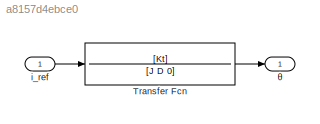
MODEL slx_a8157d4ebce0
KIND model
CONFIG AbsTol = auto
CONFIG EnableMultiTasking = off
CONFIG FixedStep = auto
CONFIG MaxStep = auto
CONFIG MinStep = auto
CONFIG RelTol = 1e-3
CONFIG SampleTimeConstraint = Unconstrained
CONFIG Solver = VariableStepAuto
CONFIG SolverName = VariableStepAuto
CONFIG StartTime = 0.0
CONFIG StopTime = 10.0
BLOCK [TransferFcn] Transfer Fcn
  Denominator = [J D 0]
  Numerator = [Kt]
BLOCK [Inport] i_ref
  IconDisplay = Port number
BLOCK [Outport] θ
  IconDisplay = Port number
LINE Transfer Fcn:1 -> θ:1
LINE i_ref:1 -> Transfer Fcn:1
